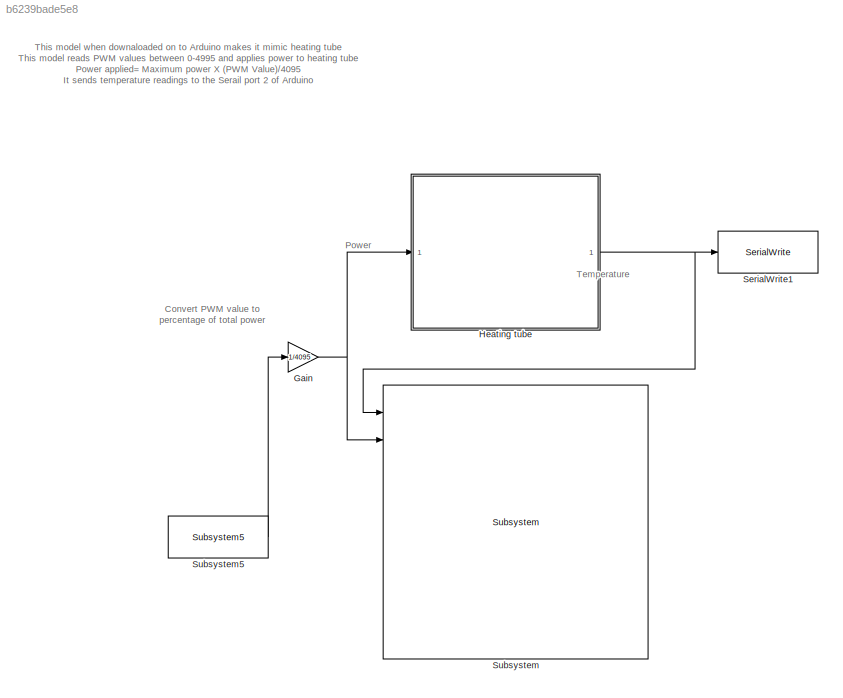
MODEL slx_b6239bade5e8
KIND model
CONFIG AbsTol = auto
CONFIG EnableMultiTasking = on
CONFIG FixedStep = 0.05
CONFIG MaxStep = auto
CONFIG MinStep = auto
CONFIG RelTol = 1e-3
CONFIG SampleTimeConstraint = Unconstrained
CONFIG Solver = FixedStepAuto
CONFIG SolverName = FixedStepAuto
CONFIG StartTime = 0.0
CONFIG StopTime = 20000
BLOCK [Gain] Gain
  Gain = 1/4095
  OutDataTypeStr = Inherit: Inherit via internal rule
  ParamDataTypeStr = Inherit: Inherit via internal rule
  SaturateOnIntegerOverflow = off
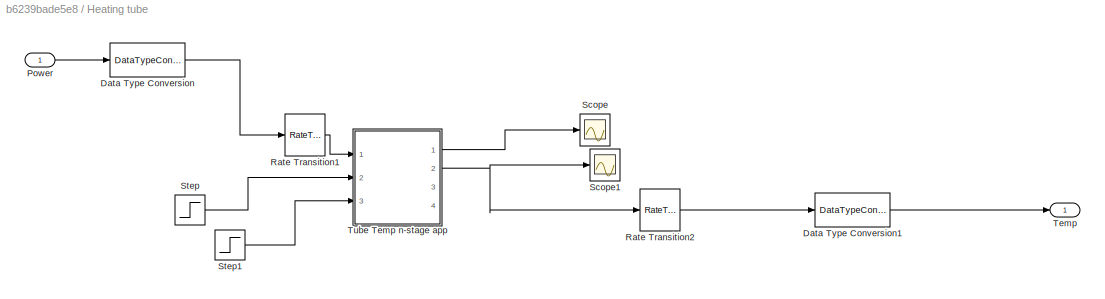
BLOCK [SubSystem] Heating tube
  Ports = [1, 1]
  RequestExecContextInheritance = off
  Variant = off
BLOCK [DataTypeConversion] Heating tube/Data Type Conversion
  RndMeth = Floor
  SaturateOnIntegerOverflow = off
BLOCK [DataTypeConversion] Heating tube/Data Type Conversion1
  RndMeth = Floor
  SaturateOnIntegerOverflow = off
BLOCK [Inport] Heating tube/Power
  IconDisplay = Port number
BLOCK [RateTransition] Heating tube/Rate Transition1
  OutPortSampleTime = 0.05
BLOCK [RateTransition] Heating tube/Rate Transition2
  OutPortSampleTime = 1
BLOCK [Scope] Heating tube/Scope
  NumInputPorts = 1
  Ports = [1]
  ScopeSpecificationString = C++SS(StrPVP('SaveName','ScopeData1'),StrPVP('LimitDataPoints','on'),StrPVP('DataFormat','Array'),StrPVP('Decimation','1'),StrPVP('BlockParamSampleInput','off'))
BLOCK [Scope] Heating tube/Scope1
  NumInputPorts = 1
  Ports = [1]
  ScopeSpecificationString = C++SS(StrPVP('SaveName','ScopeData2'),StrPVP('LimitDataPoints','on'),StrPVP('DataFormat','Array'),StrPVP('Decimation','1'),StrPVP('BlockParamSampleInput','off'))
BLOCK [Step] Heating tube/Step
  After = 25
  Before = 25
  SampleTime = 0.05
  Time = 10000
BLOCK [Step] Heating tube/Step1
  Before = 1
  SampleTime = 0.05
  Time = 5000
BLOCK [Outport] Heating tube/Temp
  IconDisplay = Port number
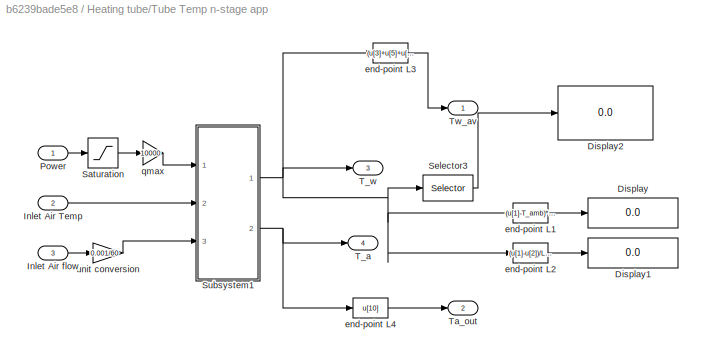
BLOCK [SubSystem] Heating tube/Tube Temp n-stage app
  Ports = [3, 4]
  RequestExecContextInheritance = off
  Variant = off
BLOCK [Display] Heating tube/Tube Temp n-stage app/Display
  Decimation = 1
  Format = short_e
  Ports = [1]
BLOCK [Display] Heating tube/Tube Temp n-stage app/Display1
  Decimation = 1
  Format = short_e
  Ports = [1]
BLOCK [Display] Heating tube/Tube Temp n-stage app/Display2
  Decimation = 1
  Format = short_e
  Ports = [1]
BLOCK [Inport] Heating tube/Tube Temp n-stage app/Inlet Air Temp
  IconDisplay = Port number
  Port = 2
BLOCK [Inport] Heating tube/Tube Temp n-stage app/Inlet Air flow
  IconDisplay = Port number
  Port = 3
BLOCK [Inport] Heating tube/Tube Temp n-stage app/Power
  IconDisplay = Port number
BLOCK [Saturate] Heating tube/Tube Temp n-stage app/Saturation
  InputPortMap = u0
  LowerLimit = 0
  Ports = [1, 1]
  UpperLimit = 1
BLOCK [Selector] Heating tube/Tube Temp n-stage app/Selector3
  IndexOptions = Index vector (dialog)
  Indices = [1,2]
  InputPortWidth = n
  OutputSizes = 1
  Ports = [1, 1]
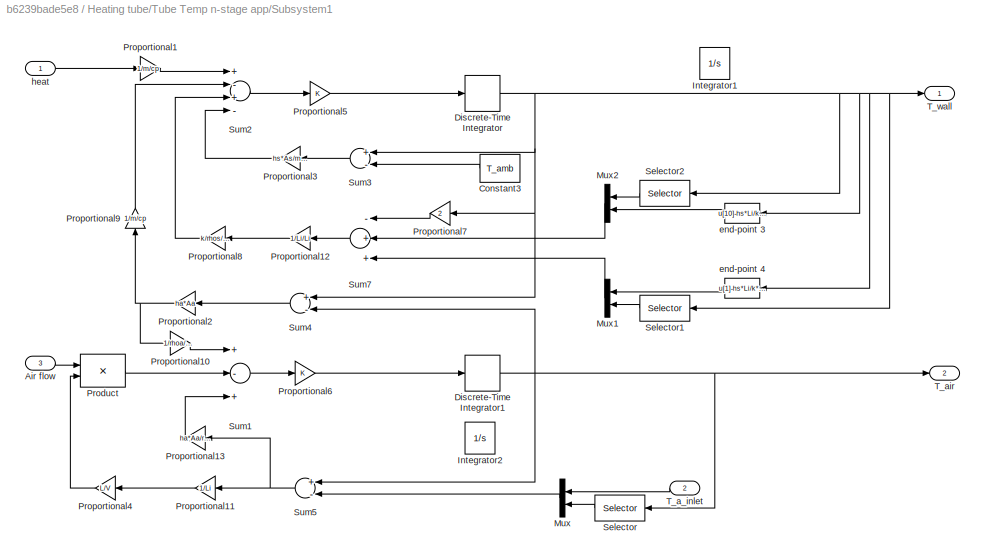
BLOCK [SubSystem] Heating tube/Tube Temp n-stage app/Subsystem1
  Ports = [3, 2]
  RequestExecContextInheritance = off
  Variant = off
BLOCK [Inport] Heating tube/Tube Temp n-stage app/Subsystem1/Air flow
  IconDisplay = Port number
  Port = 3
BLOCK [Constant] Heating tube/Tube Temp n-stage app/Subsystem1/Constant3
  Value = T_amb
BLOCK [DiscreteIntegrator] Heating tube/Tube Temp n-stage app/Subsystem1/Discrete-Time Integrator
  ICPrevOutput = DiscIntNeverNeededParam
  ICPrevScaledInput = DiscIntNeverNeededParam
  InitialCondition = T_0
  InitialConditionSetting = State (most efficient)
  Ports = [1, 1]
  SampleTime = 0.05
BLOCK [DiscreteIntegrator] Heating tube/Tube Temp n-stage app/Subsystem1/Discrete-Time Integrator1
  ICPrevOutput = DiscIntNeverNeededParam
  ICPrevScaledInput = DiscIntNeverNeededParam
  InitialCondition = T_a0
  InitialConditionSetting = State (most efficient)
  Ports = [1, 1]
  SampleTime = 0.05
BLOCK [Integrator] Heating tube/Tube Temp n-stage app/Subsystem1/Integrator1
  Commented = on
  InitialCondition = T_0
  Ports = [1, 1]
BLOCK [Integrator] Heating tube/Tube Temp n-stage app/Subsystem1/Integrator2
  Commented = on
  InitialCondition = T_a0
  Ports = [1, 1]
BLOCK [Mux] Heating tube/Tube Temp n-stage app/Subsystem1/Mux
  DisplayOption = bar
  Inputs = 2
  Ports = [2, 1]
BLOCK [Mux] Heating tube/Tube Temp n-stage app/Subsystem1/Mux1
  DisplayOption = bar
  Inputs = 2
  Ports = [2, 1]
BLOCK [Mux] Heating tube/Tube Temp n-stage app/Subsystem1/Mux2
  DisplayOption = bar
  Inputs = 2
  Ports = [2, 1]
BLOCK [Product] Heating tube/Tube Temp n-stage app/Subsystem1/Product
  Ports = [2, 1]
BLOCK [Gain] Heating tube/Tube Temp n-stage app/Subsystem1/Proportional1
  Gain = 1/m/cp
BLOCK [Gain] Heating tube/Tube Temp n-stage app/Subsystem1/Proportional10
  Gain = 1/rhoa/V/cpa
BLOCK [Gain] Heating tube/Tube Temp n-stage app/Subsystem1/Proportional11
  Gain = 1/Li
BLOCK [Gain] Heating tube/Tube Temp n-stage app/Subsystem1/Proportional12
  Gain = 1/Li/Li
BLOCK [Gain] Heating tube/Tube Temp n-stage app/Subsystem1/Proportional13
  Gain = ha*Aa/rhoa/V/cpa*0
BLOCK [Gain] Heating tube/Tube Temp n-stage app/Subsystem1/Proportional2
  Gain = ha*Aa
BLOCK [Gain] Heating tube/Tube Temp n-stage app/Subsystem1/Proportional3
  Gain = hs*As/m/cp
BLOCK [Gain] Heating tube/Tube Temp n-stage app/Subsystem1/Proportional4
  Gain = L/V
BLOCK [Gain] Heating tube/Tube Temp n-stage app/Subsystem1/Proportional5
BLOCK [Gain] Heating tube/Tube Temp n-stage app/Subsystem1/Proportional6
BLOCK [Gain] Heating tube/Tube Temp n-stage app/Subsystem1/Proportional7
  Gain = 2
BLOCK [Gain] Heating tube/Tube Temp n-stage app/Subsystem1/Proportional8
  Gain = k/rhos/cp
BLOCK [Gain] Heating tube/Tube Temp n-stage app/Subsystem1/Proportional9
  Gain = 1/m/cp
BLOCK [Selector] Heating tube/Tube Temp n-stage app/Subsystem1/Selector
  IndexOptions = Index vector (dialog)
  Indices = [1:n-1]
  InputPortWidth = n
  OutputSizes = 1
  Ports = [1, 1]
BLOCK [Selector] Heating tube/Tube Temp n-stage app/Subsystem1/Selector1
  IndexOptions = Index vector (dialog)
  Indices = [1:n-1]
  InputPortWidth = n
  OutputSizes = 1
  Ports = [1, 1]
BLOCK [Selector] Heating tube/Tube Temp n-stage app/Subsystem1/Selector2
  IndexOptions = Index vector (dialog)
  Indices = [2:n]
  InputPortWidth = n
  OutputSizes = 1
  Ports = [1, 1]
BLOCK [Sum] Heating tube/Tube Temp n-stage app/Subsystem1/Sum1
  Inputs = +-+
  Ports = [3, 1]
BLOCK [Sum] Heating tube/Tube Temp n-stage app/Subsystem1/Sum2
  Inputs = +-+-
  Ports = [4, 1]
BLOCK [Sum] Heating tube/Tube Temp n-stage app/Subsystem1/Sum3
  Inputs = +-
  Ports = [2, 1]
BLOCK [Sum] Heating tube/Tube Temp n-stage app/Subsystem1/Sum4
  Inputs = +-
  Ports = [2, 1]
BLOCK [Sum] Heating tube/Tube Temp n-stage app/Subsystem1/Sum5
  Inputs = +-
  Ports = [2, 1]
BLOCK [Sum] Heating tube/Tube Temp n-stage app/Subsystem1/Sum7
  Inputs = -++
  Ports = [3, 1]
BLOCK [Inport] Heating tube/Tube Temp n-stage app/Subsystem1/T_a_inlet
  IconDisplay = Port number
  Port = 2
BLOCK [Outport] Heating tube/Tube Temp n-stage app/Subsystem1/T_air
  IconDisplay = Port number
  Port = 2
BLOCK [Outport] Heating tube/Tube Temp n-stage app/Subsystem1/T_wall
  IconDisplay = Port number
BLOCK [Fcn] Heating tube/Tube Temp n-stage app/Subsystem1/end-point 3
  Expr = u[10]-hs*Li/k*(u[10]-T_amb)
BLOCK [Fcn] Heating tube/Tube Temp n-stage app/Subsystem1/end-point 4
  Expr = u[1]-hs*Li/k*(u[1]-T_amb)
BLOCK [Inport] Heating tube/Tube Temp n-stage app/Subsystem1/heat
  IconDisplay = Port number
BLOCK [Outport] Heating tube/Tube Temp n-stage app/T_a
  IconDisplay = Port number
  Port = 4
BLOCK [Outport] Heating tube/Tube Temp n-stage app/T_w
  IconDisplay = Port number
  Port = 3
BLOCK [Outport] Heating tube/Tube Temp n-stage app/Ta_out
  IconDisplay = Port number
  Port = 2
BLOCK [Outport] Heating tube/Tube Temp n-stage app/Tw_av
  IconDisplay = Port number
BLOCK [Fcn] Heating tube/Tube Temp n-stage app/end-point L1
  Expr = (u[1]-T_amb)*hs
BLOCK [Fcn] Heating tube/Tube Temp n-stage app/end-point L2
  Expr = (u[1]-u[2])/Li*k
BLOCK [Fcn] Heating tube/Tube Temp n-stage app/end-point L3
  Expr = (u[3]+u[5]+u[7])/3
BLOCK [Fcn] Heating tube/Tube Temp n-stage app/end-point L4
  Expr = u[10]
BLOCK [Gain] Heating tube/Tube Temp n-stage app/qmax
  Gain = 10000
BLOCK [Gain] Heating tube/Tube Temp n-stage app/unit conversion
  Gain = 0.001/60
BLOCK [Reference] SerialWrite1  REF=EEE481Arduino/SerialWrite
  Ports = [1]
  SourceBlock = EEE481Arduino/SerialWrite
BLOCK [Reference] Subsystem  REF=EEE481Arduino/Subsystem
  Ports = [9, 3]
  SourceBlock = EEE481Arduino/Subsystem
BLOCK [Reference] Subsystem5  REF=EEE481Arduino/Subsystem5
  Ports = [0, 1]
  SourceBlock = EEE481Arduino/Subsystem5
ANNOTATION (root): Convert PWM value to percentage of total power
ANNOTATION (root): Temperature
ANNOTATION (root): Power
ANNOTATION (root): This model when downaloaded on to Arduino makes it mimic heating tube This model reads PWM values between 0-4995 and applies power to heating tube Power applied= Maximum power X (PWM Value)/4095 It sends temperature readings to the Serail port 2 of Arduino
NET Gain:1 -> Heating tube:1, Subsystem:2
LINE Heating tube/Data Type Conversion1:1 -> Heating tube/Temp:1
LINE Heating tube/Data Type Conversion:1 -> Heating tube/Rate Transition1:1
LINE Heating tube/Power:1 -> Heating tube/Data Type Conversion:1
LINE Heating tube/Rate Transition1:1 -> Heating tube/Tube Temp n-stage app:1
LINE Heating tube/Rate Transition2:1 -> Heating tube/Data Type Conversion1:1
LINE Heating tube/Step1:1 -> Heating tube/Tube Temp n-stage app:3
LINE Heating tube/Step:1 -> Heating tube/Tube Temp n-stage app:2
LINE Heating tube/Tube Temp n-stage app/Inlet Air Temp:1 -> Heating tube/Tube Temp n-stage app/Subsystem1:2
LINE Heating tube/Tube Temp n-stage app/Inlet Air flow:1 -> Heating tube/Tube Temp n-stage app/unit conversion:1
LINE Heating tube/Tube Temp n-stage app/Power:1 -> Heating tube/Tube Temp n-stage app/Saturation:1
LINE Heating tube/Tube Temp n-stage app/Saturation:1 -> Heating tube/Tube Temp n-stage app/qmax:1
LINE Heating tube/Tube Temp n-stage app/Selector3:1 -> Heating tube/Tube Temp n-stage app/Display2:1
LINE Heating tube/Tube Temp n-stage app/Subsystem1/Air flow:1 -> Heating tube/Tube Temp n-stage app/Subsystem1/Product:1
LINE Heating tube/Tube Temp n-stage app/Subsystem1/Constant3:1 -> Heating tube/Tube Temp n-stage app/Subsystem1/Sum3:2
NET Heating tube/Tube Temp n-stage app/Subsystem1/Discrete-Time Integrator1:1 -> Heating tube/Tube Temp n-stage app/Subsystem1/Selector:1, Heating tube/Tube Temp n-stage app/Subsystem1/Sum4:2, Heating tube/Tube Temp n-stage app/Subsystem1/Sum5:1, Heating tube/Tube Temp n-stage app/Subsystem1/T_air:1
NET Heating tube/Tube Temp n-stage app/Subsystem1/Discrete-Time Integrator:1 -> Heating tube/Tube Temp n-stage app/Subsystem1/Proportional7:1, Heating tube/Tube Temp n-stage app/Subsystem1/Selector1:1, Heating tube/Tube Temp n-stage app/Subsystem1/Selector2:1, Heating tube/Tube Temp n-stage app/Subsystem1/Sum3:1, Heating tube/Tube Temp n-stage app/Subsystem1/Sum4:1, Heating tube/Tube Temp n-stage app/Subsystem1/T_wall:1, Heating tube/Tube Temp n-stage app/Subsystem1/end-point 3:1, Heating tube/Tube Temp n-stage app/Subsystem1/end-point 4:1
LINE Heating tube/Tube Temp n-stage app/Subsystem1/Mux1:1 -> Heating tube/Tube Temp n-stage app/Subsystem1/Sum7:3
LINE Heating tube/Tube Temp n-stage app/Subsystem1/Mux2:1 -> Heating tube/Tube Temp n-stage app/Subsystem1/Sum7:2
LINE Heating tube/Tube Temp n-stage app/Subsystem1/Mux:1 -> Heating tube/Tube Temp n-stage app/Subsystem1/Sum5:2
LINE Heating tube/Tube Temp n-stage app/Subsystem1/Product:1 -> Heating tube/Tube Temp n-stage app/Subsystem1/Sum1:2
LINE Heating tube/Tube Temp n-stage app/Subsystem1/Proportional10:1 -> Heating tube/Tube Temp n-stage app/Subsystem1/Sum1:1
LINE Heating tube/Tube Temp n-stage app/Subsystem1/Proportional11:1 -> Heating tube/Tube Temp n-stage app/Subsystem1/Proportional4:1
LINE Heating tube/Tube Temp n-stage app/Subsystem1/Proportional12:1 -> Heating tube/Tube Temp n-stage app/Subsystem1/Proportional8:1
LINE Heating tube/Tube Temp n-stage app/Subsystem1/Proportional13:1 -> Heating tube/Tube Temp n-stage app/Subsystem1/Sum1:3
LINE Heating tube/Tube Temp n-stage app/Subsystem1/Proportional1:1 -> Heating tube/Tube Temp n-stage app/Subsystem1/Sum2:1
NET Heating tube/Tube Temp n-stage app/Subsystem1/Proportional2:1 -> Heating tube/Tube Temp n-stage app/Subsystem1/Proportional10:1, Heating tube/Tube Temp n-stage app/Subsystem1/Proportional9:1
LINE Heating tube/Tube Temp n-stage app/Subsystem1/Proportional3:1 -> Heating tube/Tube Temp n-stage app/Subsystem1/Sum2:4
LINE Heating tube/Tube Temp n-stage app/Subsystem1/Proportional4:1 -> Heating tube/Tube Temp n-stage app/Subsystem1/Product:2
LINE Heating tube/Tube Temp n-stage app/Subsystem1/Proportional5:1 -> Heating tube/Tube Temp n-stage app/Subsystem1/Discrete-Time Integrator:1
LINE Heating tube/Tube Temp n-stage app/Subsystem1/Proportional6:1 -> Heating tube/Tube Temp n-stage app/Subsystem1/Discrete-Time Integrator1:1
LINE Heating tube/Tube Temp n-stage app/Subsystem1/Proportional7:1 -> Heating tube/Tube Temp n-stage app/Subsystem1/Sum7:1
LINE Heating tube/Tube Temp n-stage app/Subsystem1/Proportional8:1 -> Heating tube/Tube Temp n-stage app/Subsystem1/Sum2:3
LINE Heating tube/Tube Temp n-stage app/Subsystem1/Proportional9:1 -> Heating tube/Tube Temp n-stage app/Subsystem1/Sum2:2
LINE Heating tube/Tube Temp n-stage app/Subsystem1/Selector1:1 -> Heating tube/Tube Temp n-stage app/Subsystem1/Mux1:2
LINE Heating tube/Tube Temp n-stage app/Subsystem1/Selector2:1 -> Heating tube/Tube Temp n-stage app/Subsystem1/Mux2:1
LINE Heating tube/Tube Temp n-stage app/Subsystem1/Selector:1 -> Heating tube/Tube Temp n-stage app/Subsystem1/Mux:2
LINE Heating tube/Tube Temp n-stage app/Subsystem1/Sum1:1 -> Heating tube/Tube Temp n-stage app/Subsystem1/Proportional6:1
LINE Heating tube/Tube Temp n-stage app/Subsystem1/Sum2:1 -> Heating tube/Tube Temp n-stage app/Subsystem1/Proportional5:1
LINE Heating tube/Tube Temp n-stage app/Subsystem1/Sum3:1 -> Heating tube/Tube Temp n-stage app/Subsystem1/Proportional3:1
LINE Heating tube/Tube Temp n-stage app/Subsystem1/Sum4:1 -> Heating tube/Tube Temp n-stage app/Subsystem1/Proportional2:1
NET Heating tube/Tube Temp n-stage app/Subsystem1/Sum5:1 -> Heating tube/Tube Temp n-stage app/Subsystem1/Proportional11:1, Heating tube/Tube Temp n-stage app/Subsystem1/Proportional13:1
LINE Heating tube/Tube Temp n-stage app/Subsystem1/Sum7:1 -> Heating tube/Tube Temp n-stage app/Subsystem1/Proportional12:1
LINE Heating tube/Tube Temp n-stage app/Subsystem1/T_a_inlet:1 -> Heating tube/Tube Temp n-stage app/Subsystem1/Mux:1
LINE Heating tube/Tube Temp n-stage app/Subsystem1/end-point 3:1 -> Heating tube/Tube Temp n-stage app/Subsystem1/Mux2:2
LINE Heating tube/Tube Temp n-stage app/Subsystem1/end-point 4:1 -> Heating tube/Tube Temp n-stage app/Subsystem1/Mux1:1
LINE Heating tube/Tube Temp n-stage app/Subsystem1/heat:1 -> Heating tube/Tube Temp n-stage app/Subsystem1/Proportional1:1
NET Heating tube/Tube Temp n-stage app/Subsystem1:1 -> Heating tube/Tube Temp n-stage app/Selector3:1, Heating tube/Tube Temp n-stage app/T_w:1, Heating tube/Tube Temp n-stage app/end-point L1:1, Heating tube/Tube Temp n-stage app/end-point L2:1, Heating tube/Tube Temp n-stage app/end-point L3:1
NET Heating tube/Tube Temp n-stage app/Subsystem1:2 -> Heating tube/Tube Temp n-stage app/T_a:1, Heating tube/Tube Temp n-stage app/end-point L4:1
LINE Heating tube/Tube Temp n-stage app/end-point L1:1 -> Heating tube/Tube Temp n-stage app/Display:1
LINE Heating tube/Tube Temp n-stage app/end-point L2:1 -> Heating tube/Tube Temp n-stage app/Display1:1
LINE Heating tube/Tube Temp n-stage app/end-point L3:1 -> Heating tube/Tube Temp n-stage app/Tw_av:1
LINE Heating tube/Tube Temp n-stage app/end-point L4:1 -> Heating tube/Tube Temp n-stage app/Ta_out:1
LINE Heating tube/Tube Temp n-stage app/qmax:1 -> Heating tube/Tube Temp n-stage app/Subsystem1:1
LINE Heating tube/Tube Temp n-stage app/unit conversion:1 -> Heating tube/Tube Temp n-stage app/Subsystem1:3
LINE Heating tube/Tube Temp n-stage app:1 -> Heating tube/Scope:1
NET Heating tube/Tube Temp n-stage app:2 -> Heating tube/Rate Transition2:1, Heating tube/Scope1:1
NET Heating tube:1 -> SerialWrite1:1, Subsystem:1
LINE Subsystem5:1 -> Gain:1
note: NET lines group one-source signal fan-out (src -> all destinations, sorted); 1:1 wires keep LINE
